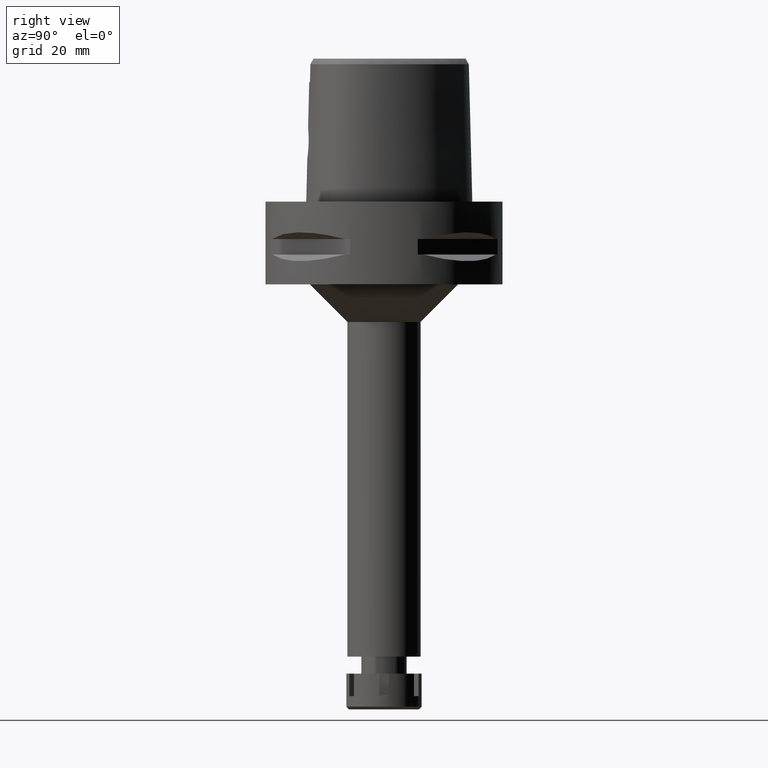
[diagram: clean part render]
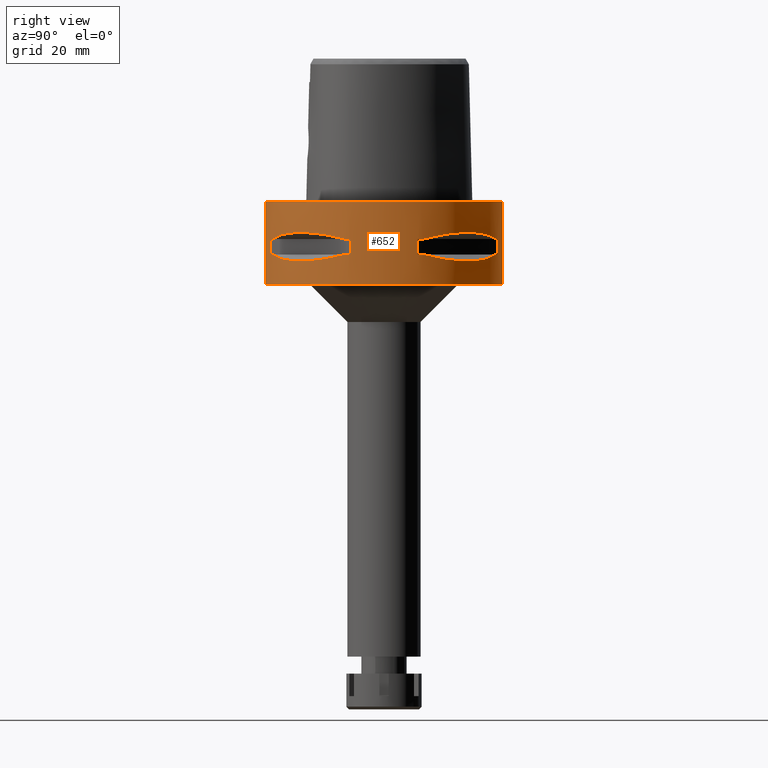
[diagram: same view with one face highlighted and labeled with its STEP entity id]
A machine part, right view. The second image highlights one B-rep face of the part: STEP entity #652.
In plain terms, the highlighted cylindrical surface (partial cylindrical patch) has radius 31.5 mm, axis along (0, 0, -1).
Its self-contained STEP definition (entity closure, byte-faithful):
#27 = CARTESIAN_POINT ( 'NONE',  ( 25.37272068394548086, -18.81462633037754628, -8.309724968578816373 ) ) ;
#52 = EDGE_CURVE ( 'NONE', #2603, #782, #3829, .T. ) ;
#53 = CARTESIAN_POINT ( 'NONE',  ( 27.88210502980660976, -14.84430321584966528, -8.906184731949373656 ) ) ;
#73 = AXIS2_PLACEMENT_3D ( 'NONE', #5563, #4771, #1277 ) ;
#96 = VECTOR ( 'NONE', #4623, 1000.000000000000000 ) ;
#120 = CARTESIAN_POINT ( 'NONE',  ( 0.0000000000000000000, -31.50000000000000000, 0.0000000000000000000 ) ) ;
#130 = CARTESIAN_POINT ( 'NONE',  ( 29.71690375017999841, -10.44775724750000023, -14.05000000000000071 ) ) ;
#135 = AXIS2_PLACEMENT_3D ( 'NONE', #4658, #3305, #4211 ) ;
#150 = CARTESIAN_POINT ( 'NONE',  ( 8.981198972017999438, -30.19251670572000279, -9.950000000000001066 ) ) ;
#173 = ORIENTED_EDGE ( 'NONE', *, *, #924, .T. ) ;
#209 = CARTESIAN_POINT ( 'NONE',  ( 26.84474411198702981, 16.48208282229089505, -15.34094883778014129 ) ) ;
#236 = CARTESIAN_POINT ( 'NONE',  ( 26.60451452154748253, 16.86571563436660526, -15.39949295786011874 ) ) ;
#239 = CARTESIAN_POINT ( 'NONE',  ( 28.92474506846249582, 12.70092055726455449, -9.353547358238495590 ) ) ;
#264 = CARTESIAN_POINT ( 'NONE',  ( 17.76952662673489769, 26.01217882833579154, -15.52665221626253356 ) ) ;
#265 = ORIENTED_EDGE ( 'NONE', *, *, #1160, .T. ) ;
#286 = FACE_OUTER_BOUND ( 'NONE', #1545, .T. ) ;
#320 = VERTEX_POINT ( 'NONE', #4600 ) ;
#326 = DIRECTION ( 'NONE',  ( 0.0000000000000000000, 0.0000000000000000000, -1.000000000000000000 ) ) ;
#330 = ORIENTED_EDGE ( 'NONE', *, *, #2109, .T. ) ;
#438 = CARTESIAN_POINT ( 'NONE',  ( 16.03138450079733346, -27.11872488588761954, -15.26880420108033398 ) ) ;
#444 = CARTESIAN_POINT ( 'NONE',  ( 23.90617837143835800, -20.64154884331411210, -8.160613588453232481 ) ) ;
#469 = EDGE_CURVE ( 'NONE', #490, #4992, #3459, .T. ) ;
#484 = CIRCLE ( 'NONE', #3817, 31.50000000000001776 ) ;
#485 = CARTESIAN_POINT ( 'NONE',  ( 0.0000000000000000000, 31.50000000000000000, -22.00000000000000000 ) ) ;
#490 = VERTEX_POINT ( 'NONE', #3888 ) ;
#536 = CARTESIAN_POINT ( 'NONE',  ( 0.0000000000000000000, 1.304248841091999852E-14, -14.05000000000000071 ) ) ;
#544 = CARTESIAN_POINT ( 'NONE',  ( 29.71690375017999841, -10.44775724750000023, -9.949999999998999201 ) ) ;
#585 = CIRCLE ( 'NONE', #135, 31.50000000000000711 ) ;
#632 = CARTESIAN_POINT ( 'NONE',  ( 29.71690375017999841, 10.44775724750000023, -14.05000000000000071 ) ) ;
#634 = CARTESIAN_POINT ( 'NONE',  ( 26.52527364208627958, -16.98999780422056816, -15.41788098766324744 ) ) ;
#652 = ADVANCED_FACE ( 'NONE', ( #286, #2448, #2023 ), #654, .T. ) ;
#654 = CYLINDRICAL_SURFACE ( 'NONE', #5341, 31.50000000000000000 ) ;
#660 = CARTESIAN_POINT ( 'NONE',  ( 28.62019653468597724, 13.25636937904471147, -14.74888225541528186 ) ) ;
#672 = CIRCLE ( 'NONE', #2282, 31.50000000000001776 ) ;
#761 = EDGE_CURVE ( 'NONE', #3364, #3223, #484, .T. ) ;
#774 = ORIENTED_EDGE ( 'NONE', *, *, #4911, .F. ) ;
#782 = VERTEX_POINT ( 'NONE', #4961 ) ;
#853 = CIRCLE ( 'NONE', #2277, 31.50000000000000000 ) ;
#866 = CARTESIAN_POINT ( 'NONE',  ( 29.71690375017999841, -10.44775724750000023, -9.949999999998999201 ) ) ;
#921 = CARTESIAN_POINT ( 'NONE',  ( 10.44775724750000023, -29.71690375017999841, -9.949999999998999201 ) ) ;
#924 = EDGE_CURVE ( 'NONE', #1193, #2541, #585, .T. ) ;
#938 = CARTESIAN_POINT ( 'NONE',  ( 28.91382665370159089, -12.73197616784618269, -14.65467361752943098 ) ) ;
#949 = CARTESIAN_POINT ( 'NONE',  ( 18.81455742157513811, -25.37277178172505288, -8.309746333145053399 ) ) ;
#965 = CARTESIAN_POINT ( 'NONE',  ( 26.54368690921627305, -16.96123479564985459, -15.41365572341332602 ) ) ;
#992 = CARTESIAN_POINT ( 'NONE',  ( 0.0000000000000000000, -31.50000000000000000, 0.0000000000000000000 ) ) ;
#1011 = EDGE_CURVE ( 'NONE', #1934, #782, #672, .T. ) ;
#1048 = CARTESIAN_POINT ( 'NONE',  ( 26.58330558444425762, 16.89910283486581832, -15.40446471307235754 ) ) ;
#1050 = CARTESIAN_POINT ( 'NONE',  ( 18.86897208074864096, -25.32725744465734152, -15.69588095933306704 ) ) ;
#1078 = CARTESIAN_POINT ( 'NONE',  ( 14.89252659058207939, 27.86285265926221300, -15.10765629752054195 ) ) ;
#1139 = CARTESIAN_POINT ( 'NONE',  ( 27.88214534473896222, 14.84422749192775726, -8.906206096515600024 ) ) ;
#1151 = AXIS2_PLACEMENT_3D ( 'NONE', #536, #1791, #4838 ) ;
#1160 = EDGE_CURVE ( 'NONE', #4879, #1426, #1260, .T. ) ;
#1193 = VERTEX_POINT ( 'NONE', #544 ) ;
#1209 = CIRCLE ( 'NONE', #5255, 31.50000000000000000 ) ;
#1244 = CARTESIAN_POINT ( 'NONE',  ( 0.0000000000000000000, 31.50000000000000000, 0.0000000000000000000 ) ) ;
#1260 = CIRCLE ( 'NONE', #2696, 31.50000000000001776 ) ;
#1277 = DIRECTION ( 'NONE',  ( 0.2851174276831918153, 0.9584925938322735872, 0.0000000000000000000 ) ) ;
#1280 = CARTESIAN_POINT ( 'NONE',  ( 11.58970337496347902, -29.31542262584038028, -14.35229357167449216 ) ) ;
#1349 = DIRECTION ( 'NONE',  ( 0.0000000000000000000, 0.0000000000000000000, 1.000000000000000000 ) ) ;
#1357 = CARTESIAN_POINT ( 'NONE',  ( 16.80193241490779599, -26.64486562695696037, -15.38992683735752642 ) ) ;
#1382 = CARTESIAN_POINT ( 'NONE',  ( 0.0000000000000000000, 1.304248841091999852E-14, -22.00000000000000000 ) ) ;
#1394 = ORIENTED_EDGE ( 'NONE', *, *, #2820, .F. ) ;
#1404 = EDGE_LOOP ( 'NONE', ( #3329, #2146, #4720, #1394, #1865, #774, #4703, #4787 ) ) ;
#1405 = CARTESIAN_POINT ( 'NONE',  ( 26.29071741523927841, -17.35163608579630079, -15.46976201925489569 ) ) ;
#1426 = VERTEX_POINT ( 'NONE', #5456 ) ;
#1457 = CARTESIAN_POINT ( 'NONE',  ( 16.70616724746217940, -26.70521063584381949, -15.37546661817795624 ) ) ;
#1485 = LINE ( 'NONE', #150, #3961 ) ;
#1510 = DIRECTION ( 'NONE',  ( 0.0000000000000000000, 0.0000000000000000000, 1.000000000000000000 ) ) ;
#1511 = CARTESIAN_POINT ( 'NONE',  ( 0.0000000000000000000, 1.304248841091999852E-14, -14.05000000000000071 ) ) ;
#1545 = EDGE_LOOP ( 'NONE', ( #2704, #5195, #5567, #5114 ) ) ;
#1585 = CARTESIAN_POINT ( 'NONE',  ( 8.981198972019999616, -30.19251670572000279, -9.950000000000001066 ) ) ;
#1592 = VECTOR ( 'NONE', #2550, 1000.000000000000000 ) ;
#1701 = AXIS2_PLACEMENT_3D ( 'NONE', #1511, #2366, #2795 ) ;
#1745 = CARTESIAN_POINT ( 'NONE',  ( 8.981198972019999616, 30.19251670572000279, -14.05000000000000071 ) ) ;
#1751 = VERTEX_POINT ( 'NONE', #120 ) ;
#1755 = CARTESIAN_POINT ( 'NONE',  ( 0.0000000000000000000, 1.304248841091999852E-14, 0.0000000000000000000 ) ) ;
#1760 = CARTESIAN_POINT ( 'NONE',  ( 28.92472615203846331, -12.70097436187911910, -9.353533115194341718 ) ) ;
#1791 = DIRECTION ( 'NONE',  ( 0.0000000000000000000, 0.0000000000000000000, -1.000000000000000000 ) ) ;
#1802 = VERTEX_POINT ( 'NONE', #1745 ) ;
#1821 = CARTESIAN_POINT ( 'NONE',  ( 29.71690375017999841, 10.44775724750000023, -9.949999999998999201 ) ) ;
#1828 = DIRECTION ( 'NONE',  ( 0.0000000000000000000, 0.0000000000000000000, 1.000000000000000000 ) ) ;
#1856 = CARTESIAN_POINT ( 'NONE',  ( 20.65093790434436372, -23.89673728056386182, -15.83935804901581079 ) ) ;
#1865 = ORIENTED_EDGE ( 'NONE', *, *, #2076, .T. ) ;
#1887 = CARTESIAN_POINT ( 'NONE',  ( 20.64154884331406237, 23.90617837143843971, -8.160613588453236034 ) ) ;
#1934 = VERTEX_POINT ( 'NONE', #3623 ) ;
#1954 = VERTEX_POINT ( 'NONE', #4932 ) ;
#1972 = CARTESIAN_POINT ( 'NONE',  ( 17.05047092244498685, 26.48642424310287780, -15.42670883407686411 ) ) ;
#1978 = AXIS2_PLACEMENT_3D ( 'NONE', #3779, #2251, #2672 ) ;
#2023 = FACE_BOUND ( 'NONE', #1404, .T. ) ;
#2034 = DIRECTION ( 'NONE',  ( 0.9584925938322735872, -0.2851174276831918153, 0.0000000000000000000 ) ) ;
#2038 = CARTESIAN_POINT ( 'NONE',  ( 10.44775724750000023, -29.71690375017999841, -14.05000000000000071 ) ) ;
#2076 = EDGE_CURVE ( 'NONE', #3312, #3694, #4132, .T. ) ;
#2109 = EDGE_CURVE ( 'NONE', #1426, #1193, #4182, .T. ) ;
#2146 = ORIENTED_EDGE ( 'NONE', *, *, #2954, .F. ) ;
#2216 = CIRCLE ( 'NONE', #73, 31.50000000000001776 ) ;
#2251 = DIRECTION ( 'NONE',  ( 0.0000000000000000000, 0.0000000000000000000, 1.000000000000000000 ) ) ;
#2259 = LINE ( 'NONE', #4822, #4377 ) ;
#2263 = CARTESIAN_POINT ( 'NONE',  ( 16.48208282229687427, -26.84474411198493371, -15.34094883778172402 ) ) ;
#2277 = AXIS2_PLACEMENT_3D ( 'NONE', #1382, #2687, #4827 ) ;
#2282 = AXIS2_PLACEMENT_3D ( 'NONE', #2432, #326, #2034 ) ;
#2346 = CARTESIAN_POINT ( 'NONE',  ( 20.18579225689579104, 24.23018836742823723, -15.78559396979392560 ) ) ;
#2349 = CARTESIAN_POINT ( 'NONE',  ( 10.44775724750000023, 29.71690375017999841, -9.949999999998999201 ) ) ;
#2365 = DIRECTION ( 'NONE',  ( 0.0000000000000000000, 0.0000000000000000000, -1.000000000000000000 ) ) ;
#2366 = DIRECTION ( 'NONE',  ( 0.0000000000000000000, 0.0000000000000000000, -1.000000000000000000 ) ) ;
#2371 = CARTESIAN_POINT ( 'NONE',  ( 29.31542262584548553, 11.58970337494890224, -14.35229357167063213 ) ) ;
#2398 = CARTESIAN_POINT ( 'NONE',  ( 21.46242677080035932, 23.08532645886616308, -15.83938991065496715 ) ) ;
#2432 = CARTESIAN_POINT ( 'NONE',  ( 0.0000000000000000000, 1.304248841091999852E-14, -14.05000000000000071 ) ) ;
#2448 = FACE_BOUND ( 'NONE', #2801, .T. ) ;
#2453 = ORIENTED_EDGE ( 'NONE', *, *, #1011, .T. ) ;
#2475 = ORIENTED_EDGE ( 'NONE', *, *, #4507, .T. ) ;
#2541 = VERTEX_POINT ( 'NONE', #2892 ) ;
#2550 = DIRECTION ( 'NONE',  ( 0.0000000000000000000, 0.0000000000000000000, -1.000000000000000000 ) ) ;
#2572 = CARTESIAN_POINT ( 'NONE',  ( 0.0000000000000000000, 1.304248841091999852E-14, -9.950000000000001066 ) ) ;
#2595 = DIRECTION ( 'NONE',  ( 0.0000000000000000000, 0.0000000000000000000, -1.000000000000000000 ) ) ;
#2603 = VERTEX_POINT ( 'NONE', #2038 ) ;
#2617 = CARTESIAN_POINT ( 'NONE',  ( 29.71690375017999841, 10.44775724750000023, -14.05000000000000071 ) ) ;
#2672 = DIRECTION ( 'NONE',  ( 0.3316748332540863653, 0.9433937698468619626, 0.0000000000000000000 ) ) ;
#2683 = EDGE_CURVE ( 'NONE', #1751, #1954, #3524, .T. ) ;
#2687 = DIRECTION ( 'NONE',  ( 0.0000000000000000000, 0.0000000000000000000, 1.000000000000000000 ) ) ;
#2696 = AXIS2_PLACEMENT_3D ( 'NONE', #2572, #1349, #3919 ) ;
#2704 = ORIENTED_EDGE ( 'NONE', *, *, #3908, .T. ) ;
#2775 = CARTESIAN_POINT ( 'NONE',  ( 18.81462633037748233, 25.37272068394555902, -8.309724968578818149 ) ) ;
#2776 = EDGE_CURVE ( 'NONE', #4879, #320, #1485, .T. ) ;
#2795 = DIRECTION ( 'NONE',  ( 0.9433937698468619626, 0.3316748332540863653, 0.0000000000000000000 ) ) ;
#2801 = EDGE_LOOP ( 'NONE', ( #173, #4397, #2453, #4909, #2475, #3338, #265, #330 ) ) ;
#2820 = EDGE_CURVE ( 'NONE', #3312, #2937, #5120, .T. ) ;
#2828 = CARTESIAN_POINT ( 'NONE',  ( 10.44775724750000023, 29.71690375017999841, -14.05000000000000071 ) ) ;
#2892 = CARTESIAN_POINT ( 'NONE',  ( 30.19251670572000279, -8.981198972017999438, -9.950000000000001066 ) ) ;
#2937 = VERTEX_POINT ( 'NONE', #4030 ) ;
#2954 = EDGE_CURVE ( 'NONE', #1802, #4204, #5359, .T. ) ;
#3081 = CARTESIAN_POINT ( 'NONE',  ( 16.86571563436751475, -26.60451452154716989, -15.39949295786035854 ) ) ;
#3082 = DIRECTION ( 'NONE',  ( 0.0000000000000000000, 1.000000000000000000, 0.0000000000000000000 ) ) ;
#3109 = DIRECTION ( 'NONE',  ( 0.0000000000000000000, 0.0000000000000000000, -1.000000000000000000 ) ) ;
#3115 = EDGE_CURVE ( 'NONE', #3486, #4204, #3785, .T. ) ;
#3133 = CARTESIAN_POINT ( 'NONE',  ( 23.08532645888704238, -21.46242677077732353, -15.83938991065408963 ) ) ;
#3159 = CARTESIAN_POINT ( 'NONE',  ( 25.32725744468687168, 18.86897208071480136, -15.69588095933130845 ) ) ;
#3188 = CARTESIAN_POINT ( 'NONE',  ( 27.64634172018161706, 15.11986997310341962, -15.11207862403678170 ) ) ;
#3191 = CARTESIAN_POINT ( 'NONE',  ( 23.90617837143836510, 20.64154884331414408, -8.160627831321443537 ) ) ;
#3214 = CARTESIAN_POINT ( 'NONE',  ( 17.14106442935163699, 26.42800887047211944, -15.43984550238531916 ) ) ;
#3223 = VERTEX_POINT ( 'NONE', #1821 ) ;
#3237 = DIRECTION ( 'NONE',  ( 0.9584925938322735872, 0.2851174276831918153, 0.0000000000000000000 ) ) ;
#3244 = CARTESIAN_POINT ( 'NONE',  ( 26.64486562695759275, 16.80193241490600542, -15.38992683735705391 ) ) ;
#3290 = CARTESIAN_POINT ( 'NONE',  ( 0.0000000000000000000, 1.304248841091999852E-14, 6.500000000000000000 ) ) ;
#3305 = DIRECTION ( 'NONE',  ( 0.0000000000000000000, 0.0000000000000000000, 1.000000000000000000 ) ) ;
#3312 = VERTEX_POINT ( 'NONE', #2617 ) ;
#3329 = ORIENTED_EDGE ( 'NONE', *, *, #3115, .T. ) ;
#3338 = ORIENTED_EDGE ( 'NONE', *, *, #2776, .F. ) ;
#3364 = VERTEX_POINT ( 'NONE', #4053 ) ;
#3388 = CARTESIAN_POINT ( 'NONE',  ( 13.25636937907020929, -28.62019653467701730, -14.74888225542203379 ) ) ;
#3459 = LINE ( 'NONE', #1244, #4174 ) ;
#3465 = CARTESIAN_POINT ( 'NONE',  ( 30.19251670572000279, 8.981198972017999438, -9.950000000000001066 ) ) ;
#3486 = VERTEX_POINT ( 'NONE', #3875 ) ;
#3524 = LINE ( 'NONE', #992, #4407 ) ;
#3603 = CARTESIAN_POINT ( 'NONE',  ( 23.89673728051777957, 20.65093790438612587, -15.83935804901405042 ) ) ;
#3623 = CARTESIAN_POINT ( 'NONE',  ( 30.19251670572000279, -8.981198972019999616, -14.05000000000000071 ) ) ;
#3694 = VERTEX_POINT ( 'NONE', #3870 ) ;
#3696 = B_SPLINE_CURVE_WITH_KNOTS ( 'NONE', 3,
 ( #5417, #239, #1139, #5387, #3191, #1887, #2775, #4480, #4542, #2349 ),
 .UNSPECIFIED., .F., .F.,
 ( 4, 2, 2, 2, 4 ),
 ( 0.0000000000000000000, 0.2500000000000001110, 0.5000000000000000000, 0.7500000000000000000, 1.000000000000000000 ),
 .UNSPECIFIED. ) ;
#3779 = CARTESIAN_POINT ( 'NONE',  ( 0.0000000000000000000, 1.304248841091999852E-14, -9.950000000000001066 ) ) ;
#3785 = CIRCLE ( 'NONE', #1978, 31.50000000000000711 ) ;
#3817 = AXIS2_PLACEMENT_3D ( 'NONE', #5378, #1510, #3237 ) ;
#3829 = B_SPLINE_CURVE_WITH_KNOTS ( 'NONE', 3,
 ( #5170, #1280, #3388, #4722, #438, #2263, #1457, #1357, #3081, #5221, #1050, #1856, #3133, #4826, #4799, #5273, #1405, #4880, #4851, #634, #965, #3954, #938, #130 ),
 .UNSPECIFIED., .F., .F.,
 ( 4, 1, 1, 1, 1, 1, 2, 2, 2, 1, 1, 1, 1, 1, 2, 2, 4 ),
 ( 0.0000000000000000000, 0.1250000000000063005, 0.1875000000000094369, 0.2187500000000109357, 0.2343750000000116851, 0.2421875000000119627, 0.2460937500000119627, 0.2500000000000119349, 0.5000000000000025535, 0.6249999999999978906, 0.6874999999999955591, 0.7187499999999945599, 0.7343749999999941158, 0.7421874999999936717, 0.7460937499999935607, 0.7499999999999933387, 1.000000000000000000 ),
 .UNSPECIFIED. ) ;
#3870 = CARTESIAN_POINT ( 'NONE',  ( 30.19251670572000279, 8.981198972017999438, -14.05000000000000071 ) ) ;
#3875 = CARTESIAN_POINT ( 'NONE',  ( 10.44775724750000023, 29.71690375017999841, -9.949999999998999201 ) ) ;
#3881 = CARTESIAN_POINT ( 'NONE',  ( 12.70092055726466640, -28.92474506846241411, -9.353547358238493814 ) ) ;
#3888 = CARTESIAN_POINT ( 'NONE',  ( 0.0000000000000000000, 31.50000000000000000, 0.0000000000000000000 ) ) ;
#3908 = EDGE_CURVE ( 'NONE', #490, #1751, #1209, .T. ) ;
#3919 = DIRECTION ( 'NONE',  ( 0.2851174276831918153, -0.9584925938322735872, 0.0000000000000000000 ) ) ;
#3920 = EDGE_CURVE ( 'NONE', #1954, #4992, #853, .T. ) ;
#3954 = CARTESIAN_POINT ( 'NONE',  ( 27.86285265927817889, -14.89252659053665795, -15.10765629750851602 ) ) ;
#3961 = VECTOR ( 'NONE', #4511, 1000.000000000000000 ) ;
#4030 = CARTESIAN_POINT ( 'NONE',  ( 10.44775724750000023, 29.71690375017999841, -14.05000000000000071 ) ) ;
#4053 = CARTESIAN_POINT ( 'NONE',  ( 30.19251670572000279, 8.981198972019999616, -9.950000000000001066 ) ) ;
#4077 = EDGE_CURVE ( 'NONE', #3223, #3486, #3696, .T. ) ;
#4085 = CARTESIAN_POINT ( 'NONE',  ( 8.981198972017999438, 30.19251670572000279, -9.950000000000001066 ) ) ;
#4090 = CARTESIAN_POINT ( 'NONE',  ( 12.73197616789159525, 28.91382665368562144, -14.65467361754145514 ) ) ;
#4118 = CARTESIAN_POINT ( 'NONE',  ( 16.96123479564913694, 26.54368690921650398, -15.41365572341313239 ) ) ;
#4132 = CIRCLE ( 'NONE', #1701, 31.50000000000000711 ) ;
#4174 = VECTOR ( 'NONE', #2595, 1000.000000000000000 ) ;
#4182 = B_SPLINE_CURVE_WITH_KNOTS ( 'NONE', 3,
 ( #921, #3881, #4732, #949, #4300, #444, #27, #53, #1760, #866 ),
 .UNSPECIFIED., .F., .F.,
 ( 4, 2, 2, 2, 4 ),
 ( 0.0000000000000000000, 0.2500000000000001665, 0.5000000000000001110, 0.7500000000000000000, 1.000000000000000000 ),
 .UNSPECIFIED. ) ;
#4204 = VERTEX_POINT ( 'NONE', #4085 ) ;
#4211 = DIRECTION ( 'NONE',  ( 0.9433937698468619626, -0.3316748332540863653, 0.0000000000000000000 ) ) ;
#4300 = CARTESIAN_POINT ( 'NONE',  ( 20.64154884331405881, -23.90617837143841840, -8.160627831321445314 ) ) ;
#4366 = LINE ( 'NONE', #3465, #1592 ) ;
#4377 = VECTOR ( 'NONE', #1828, 1000.000000000000000 ) ;
#4397 = ORIENTED_EDGE ( 'NONE', *, *, #5097, .F. ) ;
#4407 = VECTOR ( 'NONE', #3109, 1000.000000000000000 ) ;
#4465 = CIRCLE ( 'NONE', #1151, 31.50000000000000711 ) ;
#4480 = CARTESIAN_POINT ( 'NONE',  ( 14.84430321584965995, 27.88210502980663463, -8.906184731949373656 ) ) ;
#4507 = EDGE_CURVE ( 'NONE', #2603, #320, #4465, .T. ) ;
#4511 = DIRECTION ( 'NONE',  ( 0.0000000000000000000, 0.0000000000000000000, -1.000000000000000000 ) ) ;
#4539 = CARTESIAN_POINT ( 'NONE',  ( 27.11872488589154528, 16.03138450078616728, -15.26880420107737990 ) ) ;
#4542 = CARTESIAN_POINT ( 'NONE',  ( 12.70097436187914752, 28.92472615203846686, -9.353533115194341718 ) ) ;
#4600 = CARTESIAN_POINT ( 'NONE',  ( 8.981198972017999438, -30.19251670572000279, -14.05000000000000071 ) ) ;
#4623 = DIRECTION ( 'NONE',  ( 0.0000000000000000000, 0.0000000000000000000, 1.000000000000000000 ) ) ;
#4658 = CARTESIAN_POINT ( 'NONE',  ( 0.0000000000000000000, 1.304248841091999852E-14, -9.950000000000001066 ) ) ;
#4703 = ORIENTED_EDGE ( 'NONE', *, *, #761, .T. ) ;
#4720 = ORIENTED_EDGE ( 'NONE', *, *, #4984, .T. ) ;
#4722 = CARTESIAN_POINT ( 'NONE',  ( 15.11986997312254033, -27.64634172017490954, -15.11207862404184787 ) ) ;
#4732 = CARTESIAN_POINT ( 'NONE',  ( 14.84422749192781588, -27.88214534473890538, -8.906206096515601800 ) ) ;
#4771 = DIRECTION ( 'NONE',  ( 0.0000000000000000000, 0.0000000000000000000, -1.000000000000000000 ) ) ;
#4787 = ORIENTED_EDGE ( 'NONE', *, *, #4077, .T. ) ;
#4799 = CARTESIAN_POINT ( 'NONE',  ( 25.43927894892507169, -18.59229662064666755, -15.62866126334561123 ) ) ;
#4822 = CARTESIAN_POINT ( 'NONE',  ( 30.19251670572000279, -8.981198972017999438, -14.05000000000000071 ) ) ;
#4826 = CARTESIAN_POINT ( 'NONE',  ( 24.23018836746479110, -20.18579225685548195, -15.78559396979238194 ) ) ;
#4827 = DIRECTION ( 'NONE',  ( 0.0000000000000000000, -1.000000000000000000, 0.0000000000000000000 ) ) ;
#4838 = DIRECTION ( 'NONE',  ( 0.3316748332540863653, -0.9433937698468619626, 0.0000000000000000000 ) ) ;
#4851 = CARTESIAN_POINT ( 'NONE',  ( 26.48642424310542509, -17.05047092244215889, -15.42670883407675042 ) ) ;
#4879 = VERTEX_POINT ( 'NONE', #1585 ) ;
#4880 = CARTESIAN_POINT ( 'NONE',  ( 26.42800887047654967, -17.14106442934675911, -15.43984550238513620 ) ) ;
#4909 = ORIENTED_EDGE ( 'NONE', *, *, #52, .F. ) ;
#4911 = EDGE_CURVE ( 'NONE', #3364, #3694, #4366, .T. ) ;
#4932 = CARTESIAN_POINT ( 'NONE',  ( 0.0000000000000000000, -31.50000000000000000, -22.00000000000000000 ) ) ;
#4937 = CARTESIAN_POINT ( 'NONE',  ( 16.98999780422198569, 26.52527364208497573, -15.41788098766329540 ) ) ;
#4961 = CARTESIAN_POINT ( 'NONE',  ( 29.71690375017999841, -10.44775724750000023, -14.05000000000000071 ) ) ;
#4984 = EDGE_CURVE ( 'NONE', #1802, #2937, #2216, .T. ) ;
#4992 = VERTEX_POINT ( 'NONE', #485 ) ;
#5013 = DIRECTION ( 'NONE',  ( 0.0000000000000000000, -1.000000000000000000, 0.0000000000000000000 ) ) ;
#5047 = CARTESIAN_POINT ( 'NONE',  ( 8.981198972017999438, 30.19251670572000279, -14.05000000000000071 ) ) ;
#5097 = EDGE_CURVE ( 'NONE', #1934, #2541, #2259, .T. ) ;
#5114 = ORIENTED_EDGE ( 'NONE', *, *, #469, .F. ) ;
#5120 = B_SPLINE_CURVE_WITH_KNOTS ( 'NONE', 3,
 ( #632, #2371, #660, #3188, #4539, #209, #5296, #3244, #236, #1048, #3159, #3603, #2398, #2346, #5414, #264, #5329, #3214, #1972, #4937, #4118, #1078, #4090, #2828 ),
 .UNSPECIFIED., .F., .F.,
 ( 4, 1, 1, 1, 1, 1, 2, 2, 2, 1, 1, 1, 1, 1, 2, 2, 4 ),
 ( 0.0000000000000000000, 0.1250000000000023870, 0.1875000000000036915, 0.2187500000000045797, 0.2343750000000049960, 0.2421875000000053013, 0.2460937500000055789, 0.2500000000000058842, 0.5000000000000076605, 0.6250000000000083267, 0.6875000000000086597, 0.7187500000000088818, 0.7343750000000086597, 0.7421875000000086597, 0.7460937500000084377, 0.7500000000000083267, 1.000000000000000000 ),
 .UNSPECIFIED. ) ;
#5170 = CARTESIAN_POINT ( 'NONE',  ( 10.44775724750000023, -29.71690375017999841, -14.05000000000000071 ) ) ;
#5195 = ORIENTED_EDGE ( 'NONE', *, *, #2683, .T. ) ;
#5221 = CARTESIAN_POINT ( 'NONE',  ( 16.89910283486529252, -26.58330558444471947, -15.40446471307232912 ) ) ;
#5248 = DIRECTION ( 'NONE',  ( 0.0000000000000000000, 0.0000000000000000000, -1.000000000000000000 ) ) ;
#5255 = AXIS2_PLACEMENT_3D ( 'NONE', #1755, #5248, #3082 ) ;
#5273 = CARTESIAN_POINT ( 'NONE',  ( 26.01217882835178585, -17.76952662671725847, -15.52665221626185676 ) ) ;
#5296 = CARTESIAN_POINT ( 'NONE',  ( 26.70521063584491017, 16.70616724745910275, -15.37546661817714444 ) ) ;
#5329 = CARTESIAN_POINT ( 'NONE',  ( 17.35163608580574035, 26.29071741523071282, -15.46976201925525274 ) ) ;
#5341 = AXIS2_PLACEMENT_3D ( 'NONE', #3290, #2365, #5013 ) ;
#5359 = LINE ( 'NONE', #5047, #96 ) ;
#5378 = CARTESIAN_POINT ( 'NONE',  ( 0.0000000000000000000, 1.304248841091999852E-14, -9.950000000000001066 ) ) ;
#5387 = CARTESIAN_POINT ( 'NONE',  ( 25.37277178172504222, 18.81455742157517363, -8.309746333145048069 ) ) ;
#5414 = CARTESIAN_POINT ( 'NONE',  ( 18.59229662067690114, 25.43927894889767316, -15.62866126334676942 ) ) ;
#5417 = CARTESIAN_POINT ( 'NONE',  ( 29.71690375017999841, 10.44775724750000023, -9.949999999998999201 ) ) ;
#5456 = CARTESIAN_POINT ( 'NONE',  ( 10.44775724750000023, -29.71690375017999841, -9.949999999998999201 ) ) ;
#5563 = CARTESIAN_POINT ( 'NONE',  ( 0.0000000000000000000, 1.304248841091999852E-14, -14.05000000000000071 ) ) ;
#5567 = ORIENTED_EDGE ( 'NONE', *, *, #3920, .T. ) ;